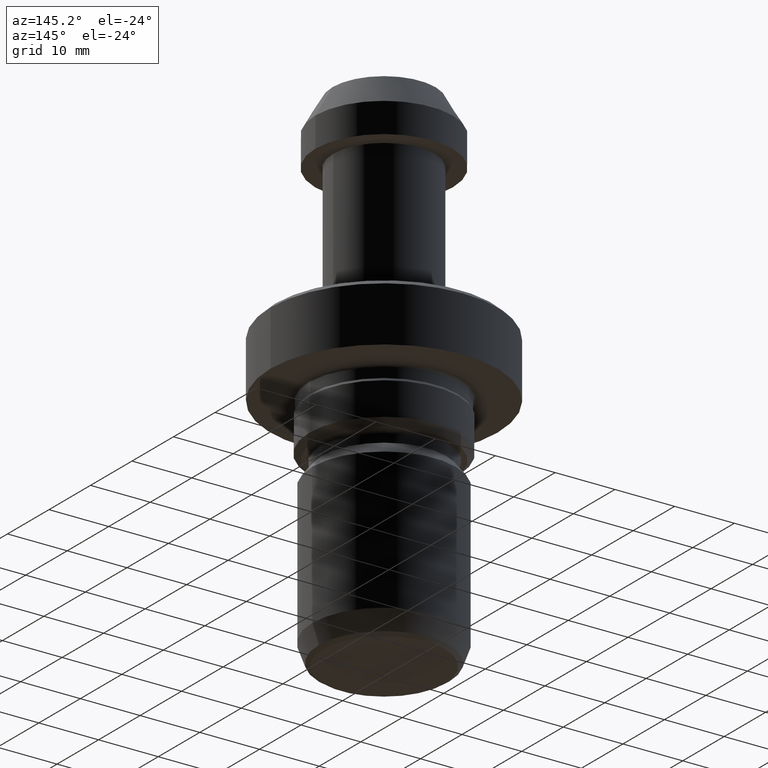
[diagram: clean part render]
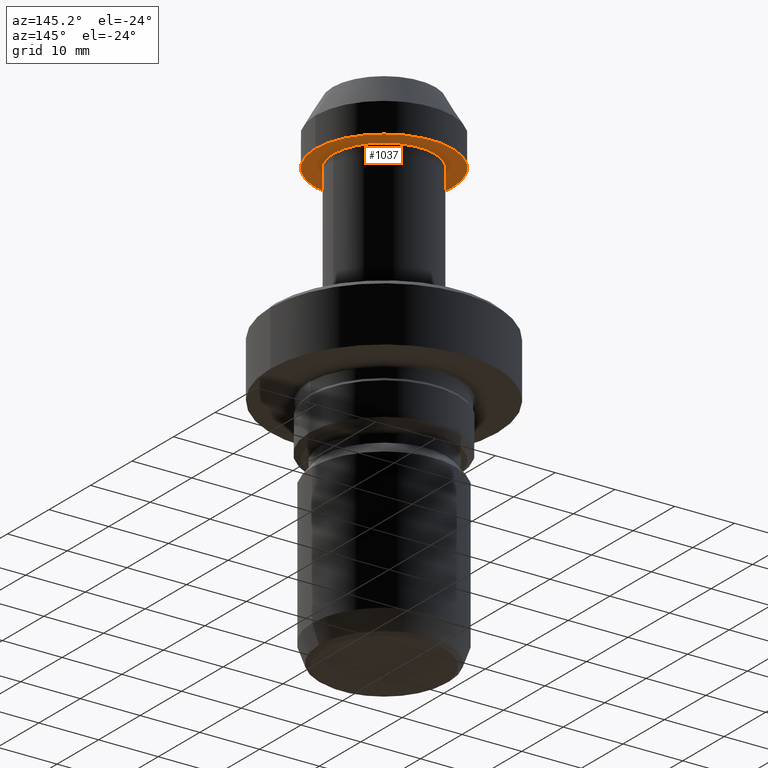
[diagram: same view with one face highlighted and labeled with its STEP entity id]
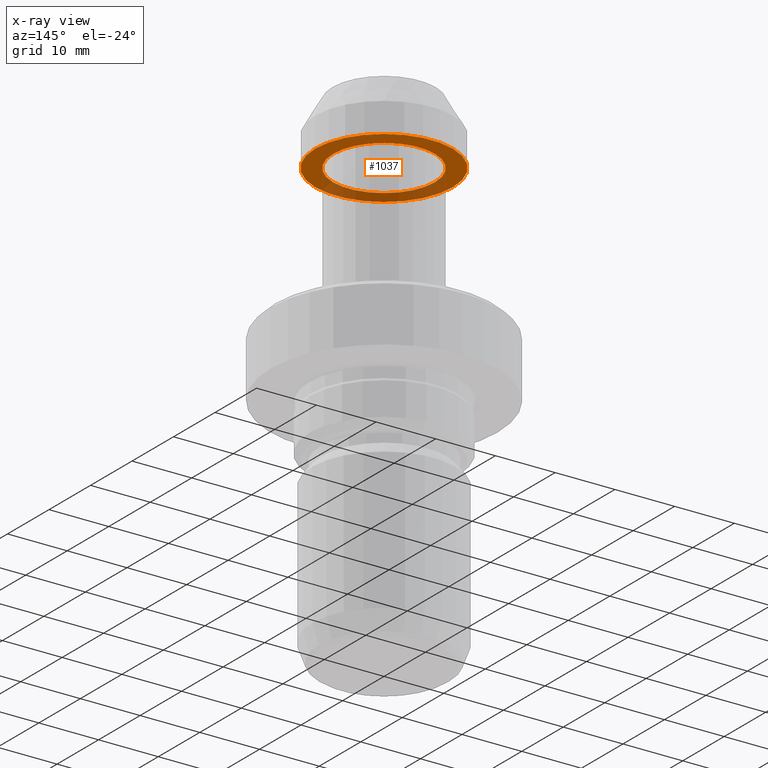
[diagram: x-ray of the same camera — body ghosted, the highlighted face saturated]
A machine part, auxiliary view. The second image highlights one B-rep face of the part: STEP entity #1037.
The next image is the same camera in x-ray: the body ghosted, the highlighted face saturated — about 29% of this face is hidden behind the body in this view.
In plain terms, the highlighted planar face has unit normal (0, -0, 1).
Its self-contained STEP definition (entity closure, byte-faithful):
#37 = EDGE_CURVE ( 'NONE', #766, #458, #894, .T. ) ;
#84 = FACE_OUTER_BOUND ( 'NONE', #1050, .T. ) ;
#98 = CIRCLE ( 'NONE', #832, 11.50000000000000000 ) ;
#155 = EDGE_CURVE ( 'NONE', #458, #766, #793, .T. ) ;
#197 = DIRECTION ( 'NONE',  ( -0.0000000000000000000, -0.0000000000000000000, 1.000000000000000000 ) ) ;
#230 = CARTESIAN_POINT ( 'NONE',  ( 8.500000000000000000, 0.0000000000000000000, -10.00000000000000200 ) ) ;
#257 = AXIS2_PLACEMENT_3D ( 'NONE', #1128, #863, #694 ) ;
#291 = DIRECTION ( 'NONE',  ( -0.0000000000000000000, -0.0000000000000000000, 1.000000000000000000 ) ) ;
#299 = CIRCLE ( 'NONE', #732, 11.50000000000000000 ) ;
#300 = DIRECTION ( 'NONE',  ( -0.0000000000000000000, -0.0000000000000000000, 1.000000000000000000 ) ) ;
#326 = CARTESIAN_POINT ( 'NONE',  ( -8.500000000000000000, 1.040949779275250100E-015, -10.00000000000000200 ) ) ;
#378 = ORIENTED_EDGE ( 'NONE', *, *, #37, .T. ) ;
#436 = CARTESIAN_POINT ( 'NONE',  ( -11.50000000000000000, 1.408343819019456200E-015, -9.999999999999998200 ) ) ;
#458 = VERTEX_POINT ( 'NONE', #326 ) ;
#466 = AXIS2_PLACEMENT_3D ( 'NONE', #735, #197, #818 ) ;
#473 = ORIENTED_EDGE ( 'NONE', *, *, #155, .T. ) ;
#477 = FACE_BOUND ( 'NONE', #678, .T. ) ;
#510 = VERTEX_POINT ( 'NONE', #1127 ) ;
#536 = CARTESIAN_POINT ( 'NONE',  ( 0.0000000000000000000, 0.0000000000000000000, -9.999999999999998200 ) ) ;
#624 = DIRECTION ( 'NONE',  ( 1.000000000000000000, 0.0000000000000000000, 0.0000000000000000000 ) ) ;
#678 = EDGE_LOOP ( 'NONE', ( #378, #473 ) ) ;
#681 = ORIENTED_EDGE ( 'NONE', *, *, #887, .F. ) ;
#694 = DIRECTION ( 'NONE',  ( 1.000000000000000000, 0.0000000000000000000, 0.0000000000000000000 ) ) ;
#726 = ORIENTED_EDGE ( 'NONE', *, *, #936, .F. ) ;
#732 = AXIS2_PLACEMENT_3D ( 'NONE', #828, #300, #906 ) ;
#735 = CARTESIAN_POINT ( 'NONE',  ( 0.0000000000000000000, 0.0000000000000000000, -10.00000000000000200 ) ) ;
#766 = VERTEX_POINT ( 'NONE', #230 ) ;
#793 = CIRCLE ( 'NONE', #466, 8.500000000000000000 ) ;
#818 = DIRECTION ( 'NONE',  ( 1.000000000000000000, 0.0000000000000000000, 0.0000000000000000000 ) ) ;
#828 = CARTESIAN_POINT ( 'NONE',  ( 0.0000000000000000000, 0.0000000000000000000, -9.999999999999998200 ) ) ;
#832 = AXIS2_PLACEMENT_3D ( 'NONE', #536, #1130, #624 ) ;
#863 = DIRECTION ( 'NONE',  ( 0.0000000000000000000, -0.0000000000000000000, 1.000000000000000000 ) ) ;
#887 = EDGE_CURVE ( 'NONE', #990, #510, #98, .T. ) ;
#894 = CIRCLE ( 'NONE', #1143, 8.500000000000000000 ) ;
#902 = DIRECTION ( 'NONE',  ( 1.000000000000000000, 0.0000000000000000000, 0.0000000000000000000 ) ) ;
#906 = DIRECTION ( 'NONE',  ( 1.000000000000000000, 0.0000000000000000000, 0.0000000000000000000 ) ) ;
#936 = EDGE_CURVE ( 'NONE', #510, #990, #299, .T. ) ;
#990 = VERTEX_POINT ( 'NONE', #436 ) ;
#1037 = ADVANCED_FACE ( 'NONE', ( #84, #477 ), #1046, .F. ) ;
#1046 = PLANE ( 'NONE',  #257 ) ;
#1050 = EDGE_LOOP ( 'NONE', ( #726, #681 ) ) ;
#1092 = CARTESIAN_POINT ( 'NONE',  ( 0.0000000000000000000, 0.0000000000000000000, -10.00000000000000200 ) ) ;
#1127 = CARTESIAN_POINT ( 'NONE',  ( 11.50000000000000000, 0.0000000000000000000, -9.999999999999998200 ) ) ;
#1128 = CARTESIAN_POINT ( 'NONE',  ( 0.0000000000000000000, 11.50000000000000000, -10.00000000000000000 ) ) ;
#1130 = DIRECTION ( 'NONE',  ( -0.0000000000000000000, -0.0000000000000000000, 1.000000000000000000 ) ) ;
#1143 = AXIS2_PLACEMENT_3D ( 'NONE', #1092, #291, #902 ) ;